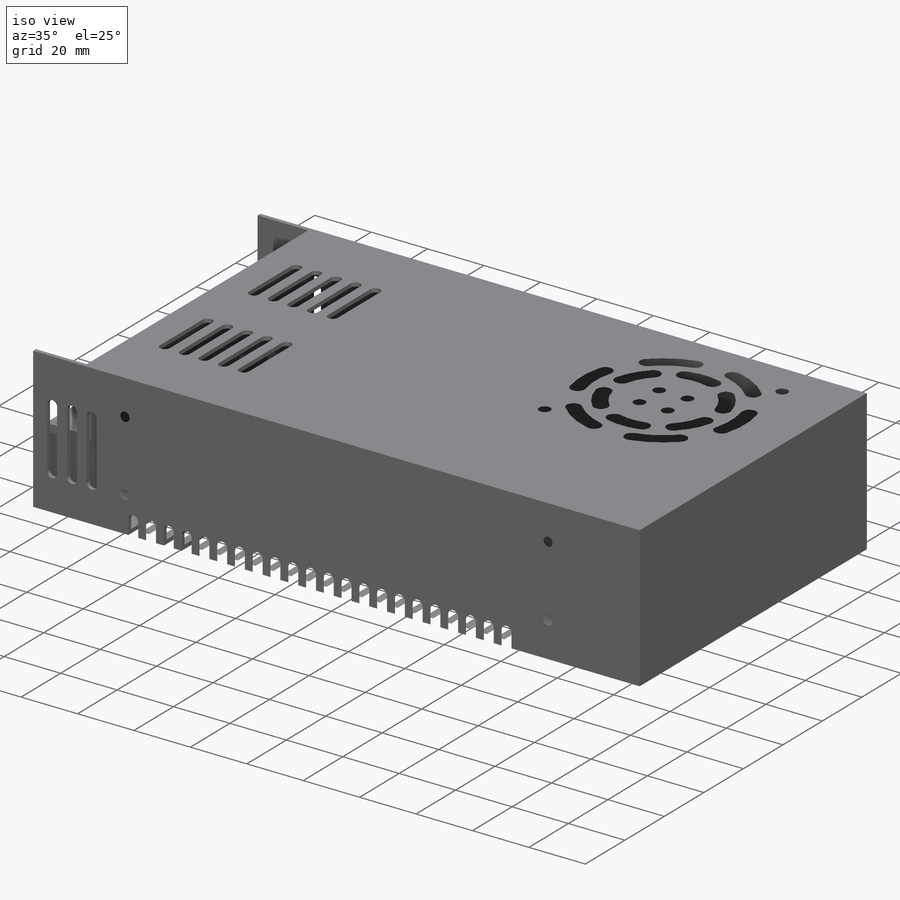
[diagram: iso view]
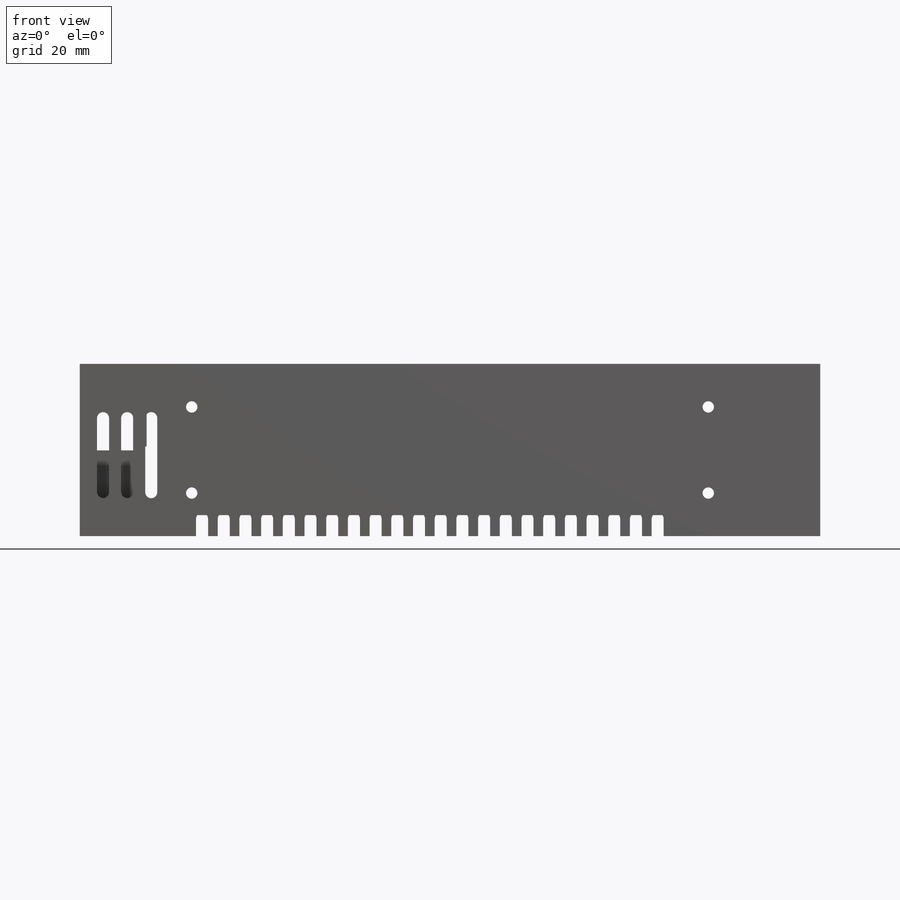
[diagram: front view]
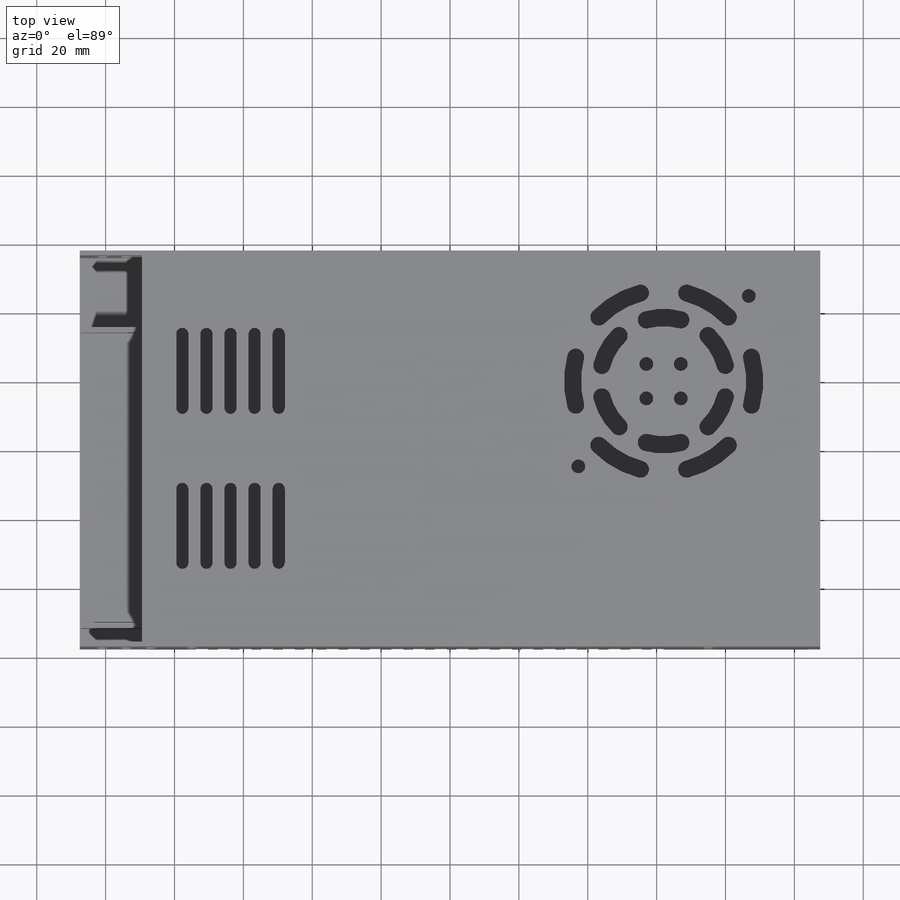
[diagram: top view]
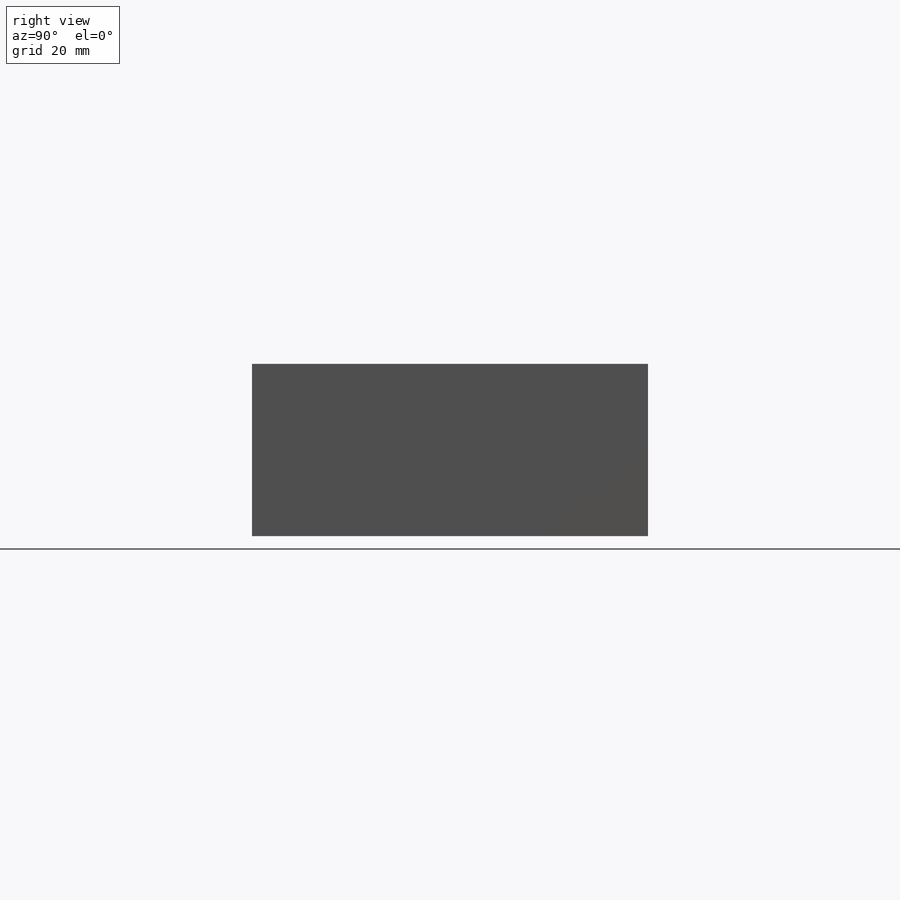
[diagram: right view]
SOLIDWORKS PART (.sldprt)
format: sldprt  version: not decoded by parser v0  size: 2,096,640 bytes
history: native  units: mm
features: sketch x30, extrude x13, cut_extrude x6, hole x4, material x1, plane x1, fillet x1 (+13 scaffold rows collapsed)
feature tree (69):
  scaffold x13  (default folders/planes/origin — collapsed)
  material  "6061 Alloy"
  sketch  "Sketch1"  dims[D1=115.0mm D2=215.0mm D3=1.4mm D4=1.4mm D5=1.4mm]
  extrude  "Boss-Extrude1"  Depth=50mm
  sketch  "Sketch2"
  extrude  "Boss-Extrude2"  Depth=1.4mm
  sketch  "Sketch3"  dims[D1=18.0mm]
  extrude  "Boss-Extrude3"  Depth=1.4mm
  sketch  "Sketch4"  dims[D1=1.4mm]
  extrude  "Boss-Extrude4"  Depth=24mm
  sketch  "Sketch16"  dims[D1=1.4mm]
  extrude  "Boss-Extrude5"  Depth=6mm
  sketch  "Sketch5"  dims[c1.D1=~2.320697mm c1.D2=~3.734483mm c2.D1=28.5mm c2.D2=21.5mm c2.D3=11.75mm c2.D4=10.0mm c2.D5=5.0]
  cut_extrude  "Cut-Extrude1"  [1 undecoded]
  sketch  "Sketch6"  dims[c1.D1=3.5mm c1.D6=3.5mm c1.D7=3.5mm c1.D2=21.5mm c1.D3=12.75mm c1.D4=5.0mm c2.D7=5.0mm c2.D8=35.5mm c2.D5=3.0 c2.D9=22.0]
  cut_extrude  "Cut-Extrude2"  [1 undecoded]
  sketch  "Sketch7"  dims[c1.D1=0.0mm c1.D2=0.0mm c1.D3=0.0mm c1.D4=0.0mm c1.D5=0.0mm c1.D6=0.0mm c1.D7=0.0mm c1.D8=0.0mm c1.D9=0.0mm c1.D10=0.0mm c1.D11=0.0mm c1.D12=0.0mm c1.D13=0.0mm c1.D14=0.0mm c1.D15=0.0mm c1.D16=0.0mm c1.D17=0.0mm c1.D18=0.0mm c1.D19=0.0mm c1.D20=0.0mm c1.D21=0.0mm c1.D22=0.0mm c1.D23=0.0mm c1.D24=0.0mm c1.D25=0.0mm c2.D1=0.0mm c2.D2=0.0mm c2.D3=0.0mm c2.D4=0.0mm c2.D5=0.0mm c2.D6=0.0mm c2.D7=0.0mm c2.D8=0.0mm c2.D9=0.0mm c2.D10=0.0mm c2.D11=0.0mm c2.D12=0.0mm c2.D13=0.0mm c2.D14=0.0mm c2.D15=0.0mm c2.D16=0.0mm c2.D17=0.0mm c2.D18=0.0mm c2.D19=0.0mm c2.D20=0.0mm c2.D21=0.0mm c2.D22=0.0mm c2.D23=0.0mm c2.D24=0.0mm c2.D25=0.0mm]
  cut_extrude  "Cut-Extrude3"  [1 undecoded]
  sketch  "Sketch14"  dims[c1.D2=1.75mm c1.D1=18.25mm c2.D2=22.0]
  cut_extrude  "Cut-Extrude4"  [1 undecoded]
  sketch  "Sketch15"  dims[c1.D2=~51.925279mm c1.D3=57.83mm c1.D4=48.0mm c1.D5=42.0mm c1.D6=32.0mm c1.D7=6.0mm c1.D8=6.0mm c1.D12=~2.744713mm c1.D13=~2.744713mm c1.D14=4.0mm c1.D15=70.0mm c1.D16=4.0mm c1.D1=38.0mm c2.D2=45.5mm c2.D7=7.0mm c2.D8=14.0mm c2.D10=10.0mm c2.D12=5.0mm c2.D13=5.0mm c2.D17=~24.188104mm c3.D17=45.0deg c3.D9=6.0 c3.D11=6.0]
  cut_extrude  "Cut-Extrude5"  [1 undecoded]
  plane  "Plane1"  Offset=0.1mm
  sketch  "Sketch17"  dims[D1=0.1mm D2=0.1mm]
  extrude  "Boss-Extrude6"  Depth=1.6mm
  sketch  "Sketch9"  dims[c1.D1=10.75mm c1.D2=32.5mm c1.D3=150.0mm c1.D4=10.75mm c2.D1=150.0mm c2.D2=25.0mm c2.D3=32.5mm]
  sketch  "Sketch10"
  hole  "Tap Drill for M4x0.7 Tap3"  Diameter=3.3mm Depth=1.399mm
  sketch  "Sketch12"
  sketch  "Sketch11"  dims[hole-wizard template sketch: 47 standard entries collapsed; hole parameters kept: c15.Hole Depth=1.399mm c15.D3=~14.816244mm c15.Drill Angle=180.0deg]
  hole  "Tap Drill for M4x0.7 Tap2"  Diameter=3.3mm Depth=1.399mm
  sketch  "3DSketch1"
  sketch  "Sketch13"  dims[hole-wizard template sketch: 47 standard entries collapsed; hole parameters kept: c15.Hole Depth=1.399mm c15.D3=~14.816244mm c15.Drill Angle=180.0deg]
  sketch  "Sketch18"  dims[c1.D1=95.0mm c1.D2=177.5mm c1.D3=10.0mm c1.D4=50.0mm c1.D5=150.0mm c1.D6=32.5mm c2.D3=27.5mm]
  hole  "Tap Drill for M3x0.5 Tap3"  Diameter=2.5mm Depth=1.4mm
  sketch  "3DSketch2"
  sketch  "Sketch20"  dims[hole-wizard template sketch: 60 standard entries collapsed; hole parameters kept: c18.Thru Hole Depth=1.4mm]
  hole  "Tap Drill for M4x0.7 Tap1"  Diameter=3.3mm Depth=7.7mm
  sketch  "3DSketch3"
  sketch  "Sketch21"  dims[hole-wizard template sketch: 59 standard entries collapsed; hole parameters kept: c18.Thru Hole Dia.=3.3mm c18.Thru Hole Depth=7.7mm]
  sketch  "Sketch22"  dims[D1=87.3mm D2=93.1mm D3=17.5mm D4=0.1mm D5=1.5mm D6=1.5mm D8=1.5mm D9=1.5mm D7=9.0]
  extrude  "Boss-Extrude7"  Depth=7mm
  extrude  "Boss-Extrude8"  [1 undecoded]
  sketch  "Sketch22<3>"  dims[D1=13.2mm]
  extrude  "Boss-Extrude9"  [1 undecoded]
  sketch  "Sketch22<4>"  dims[D1=17.2mm]
  sketch  "Sketch23"  dims[c1.D2=6.5mm c1.D1=0.2mm c1.D3=0.5mm c1.D4=0.5mm c1.D5=9.0 c2.D4=4.0]
  extrude  "Boss-Extrude10"  Depth=1.2mm
  extrude  "Boss-Extrude11"  [1 undecoded]
  sketch  "Sketch23<3>"  dims[D1=4.0mm]
  fillet  "Fillet1"  Radius=1mm
  cut_extrude  "Cut-Extrude7"  [1 undecoded]
  sketch  "Sketch23<4>"  dims[D19=3.0mm]
  sketch  "Sketch24"  dims[D1=0.1mm D2=0.2mm D3=0.1mm D4=0.2mm]
  extrude  "Boss-Extrude12"  Depth=2mm
  sketch  "Sketch25"  dims[c1.D1=5.5mm c1.D2=10.0mm c1.D3=0.6mm c1.D4=3.25mm c1.D5=3.25mm c1.D6=0.25mm c1.D7=0.4mm c1.D8=0.4mm c1.D9=5.0mm c1.D10=1.0mm c1.D11=1.0mm c1.D12=3.5mm c1.D13=0.5mm c2.D9=0.4mm c2.D14=1.5mm c2.D17=28.6mm c2.D15=2.0 c2.D16=2.0]
  extrude  "Boss-Extrude13"  Depth=0.01mm
decode coverage: 39 of 54 modeling features carry decoded parameters
note: ~ marks probable driven/reference dimensions
note: 9 parameter values undecoded
summary: no parameter record found for 9 features; Diameter pulled from absorbed wizard sketch
note: suppression state not decoded; provenance and decode notes live in map.json
